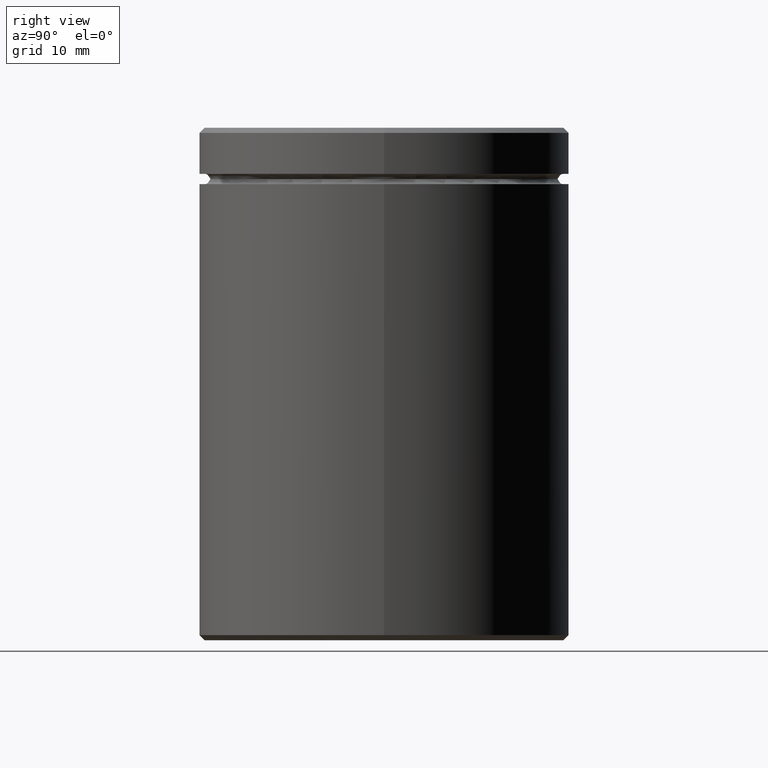
[diagram: clean part render]
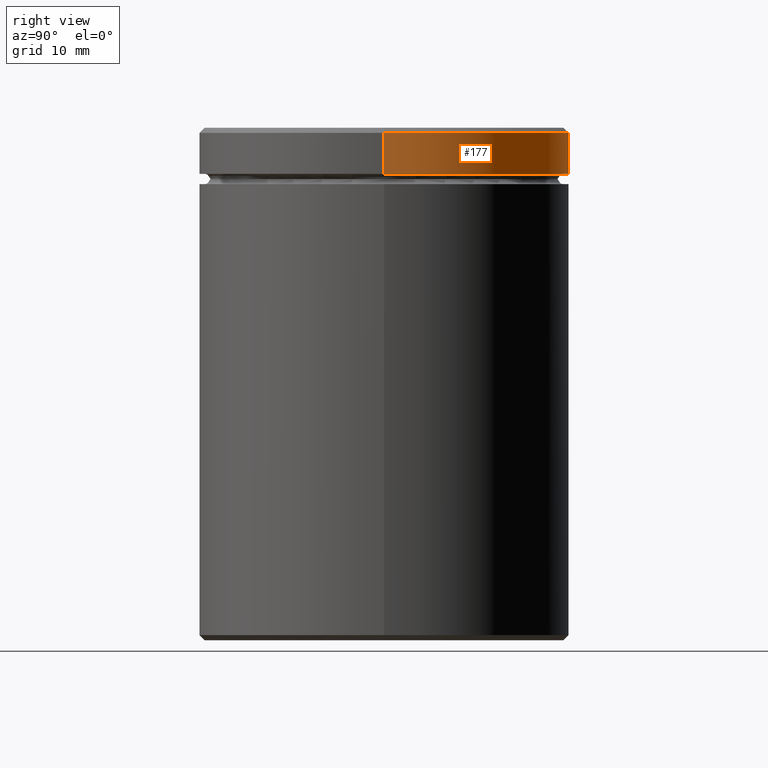
[diagram: same view with one face highlighted and labeled with its STEP entity id]
A machine part, right view. The second image highlights one B-rep face of the part: STEP entity #177.
In plain terms, the highlighted cylindrical surface (partial cylindrical patch) has radius 18 mm, axis along (-0, -0, 1).
Its self-contained STEP definition (entity closure, byte-faithful):
#9 = AXIS2_PLACEMENT_3D ( 'NONE', #413, #172, #55 ) ;
#31 = DIRECTION ( 'NONE',  ( 0.000000000000000000, 0.000000000000000000, -1.000000000000000000 ) ) ;
#38 = DIRECTION ( 'NONE',  ( -0.000000000000000000, -0.000000000000000000, 1.000000000000000000 ) ) ;
#39 = CARTESIAN_POINT ( 'NONE',  ( -18.00000000000000000, 2.204364238465235428E-15, 0.000000000000000000 ) ) ;
#55 = DIRECTION ( 'NONE',  ( 1.000000000000000000, 0.000000000000000000, 0.000000000000000000 ) ) ;
#70 = EDGE_CURVE ( 'NONE', #503, #425, #178, .T. ) ;
#80 = DIRECTION ( 'NONE',  ( -0.000000000000000000, -0.000000000000000000, 1.000000000000000000 ) ) ;
#109 = CARTESIAN_POINT ( 'NONE',  ( 0.000000000000000000, 0.000000000000000000, 0.000000000000000000 ) ) ;
#114 = FACE_OUTER_BOUND ( 'NONE', #335, .T. ) ;
#129 = CARTESIAN_POINT ( 'NONE',  ( 18.00000000000000000, 0.000000000000000000, -0.5000000000000108802 ) ) ;
#153 = ORIENTED_EDGE ( 'NONE', *, *, #365, .F. ) ;
#154 = CARTESIAN_POINT ( 'NONE',  ( 18.00000000000000000, 0.000000000000000000, -4.500000000000000888 ) ) ;
#171 = VERTEX_POINT ( 'NONE', #512 ) ;
#172 = DIRECTION ( 'NONE',  ( -0.000000000000000000, -0.000000000000000000, 1.000000000000000000 ) ) ;
#177 = ADVANCED_FACE ( 'NONE', ( #114 ), #521, .T. ) ;
#178 = CIRCLE ( 'NONE', #349, 18.00000000000000000 ) ;
#181 = ORIENTED_EDGE ( 'NONE', *, *, #469, .T. ) ;
#182 = CARTESIAN_POINT ( 'NONE',  ( -18.00000000000000000, 2.204364238465235428E-15, -0.5000000000000108802 ) ) ;
#187 = CIRCLE ( 'NONE', #9, 18.00000000000000000 ) ;
#209 = CARTESIAN_POINT ( 'NONE',  ( 18.00000000000000000, 0.000000000000000000, 0.000000000000000000 ) ) ;
#210 = DIRECTION ( 'NONE',  ( 1.000000000000000000, 0.000000000000000000, 0.000000000000000000 ) ) ;
#213 = AXIS2_PLACEMENT_3D ( 'NONE', #109, #38, #210 ) ;
#280 = EDGE_CURVE ( 'NONE', #171, #503, #345, .T. ) ;
#322 = VERTEX_POINT ( 'NONE', #154 ) ;
#335 = EDGE_LOOP ( 'NONE', ( #181, #537, #534, #153 ) ) ;
#345 = LINE ( 'NONE', #39, #541 ) ;
#349 = AXIS2_PLACEMENT_3D ( 'NONE', #437, #31, #440 ) ;
#365 = EDGE_CURVE ( 'NONE', #322, #425, #475, .T. ) ;
#378 = VECTOR ( 'NONE', #80, 1000.000000000000000 ) ;
#413 = CARTESIAN_POINT ( 'NONE',  ( 0.000000000000000000, 0.000000000000000000, -4.500000000000000888 ) ) ;
#425 = VERTEX_POINT ( 'NONE', #129 ) ;
#435 = DIRECTION ( 'NONE',  ( -0.000000000000000000, -0.000000000000000000, 1.000000000000000000 ) ) ;
#437 = CARTESIAN_POINT ( 'NONE',  ( 0.000000000000000000, 0.000000000000000000, -0.5000000000000108802 ) ) ;
#440 = DIRECTION ( 'NONE',  ( 1.000000000000000000, 0.000000000000000000, 0.000000000000000000 ) ) ;
#469 = EDGE_CURVE ( 'NONE', #322, #171, #187, .T. ) ;
#475 = LINE ( 'NONE', #209, #378 ) ;
#503 = VERTEX_POINT ( 'NONE', #182 ) ;
#512 = CARTESIAN_POINT ( 'NONE',  ( -18.00000000000000000, 2.204364238465235428E-15, -4.500000000000000888 ) ) ;
#521 = CYLINDRICAL_SURFACE ( 'NONE', #213, 18.00000000000000000 ) ;
#534 = ORIENTED_EDGE ( 'NONE', *, *, #70, .T. ) ;
#537 = ORIENTED_EDGE ( 'NONE', *, *, #280, .T. ) ;
#541 = VECTOR ( 'NONE', #435, 1000.000000000000000 ) ;